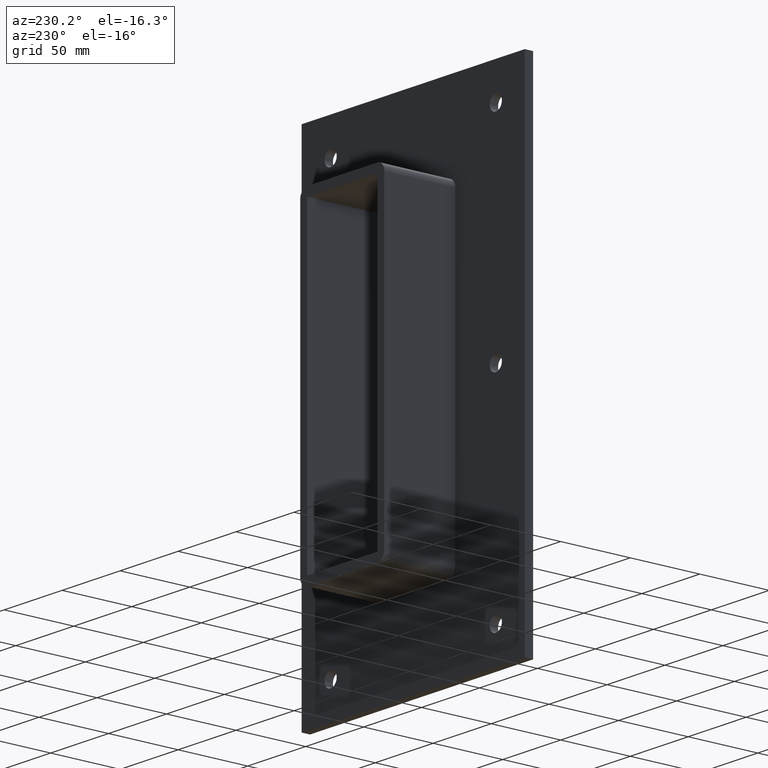
[diagram: clean part render]
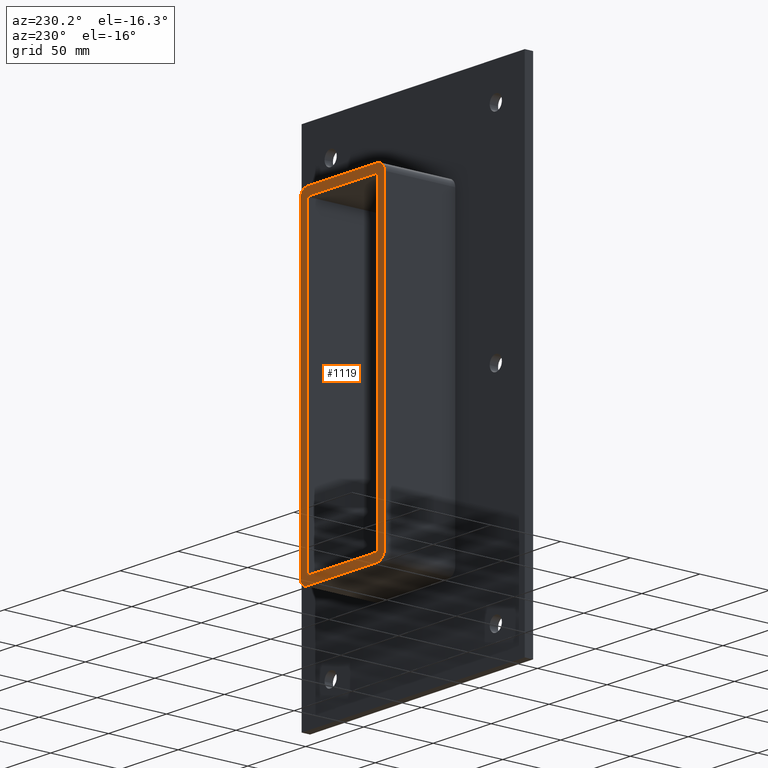
[diagram: same view with one face highlighted and labeled with its STEP entity id]
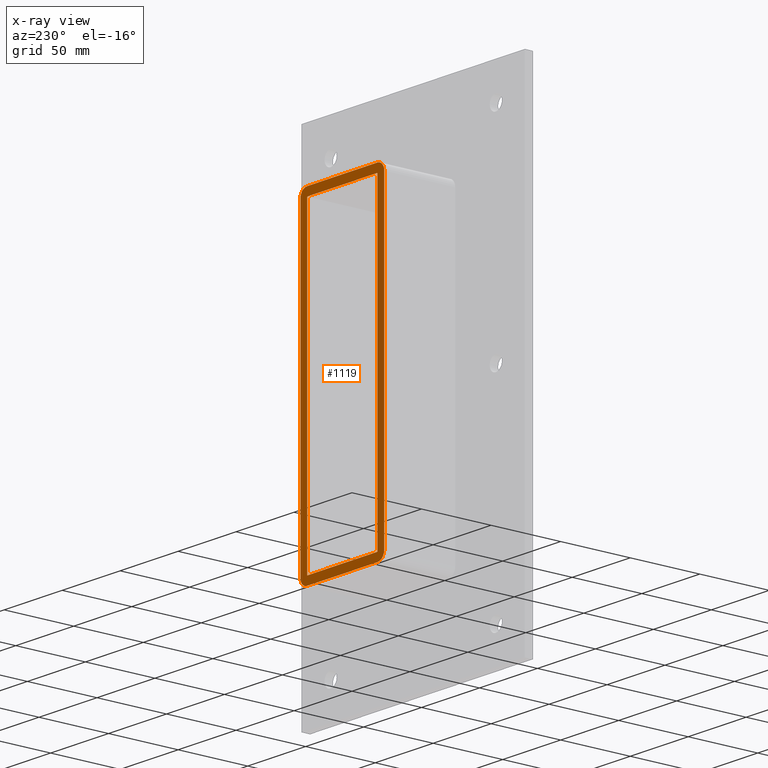
[diagram: x-ray of the same camera — body ghosted, the highlighted face saturated]
A machine part, auxiliary view. The second image highlights one B-rep face of the part: STEP entity #1119.
The next image is the same camera in x-ray: the body ghosted, the highlighted face saturated — about 0% of this face is hidden behind the body in this view.
In plain terms, the highlighted planar face has unit normal (0, 1, 0).
Its self-contained STEP definition (entity closure, byte-faithful):
#567=CARTESIAN_POINT('',(-30.249999999999986,57.0,-108.99999999999999));
#568=VERTEX_POINT('',#567);
#575=CARTESIAN_POINT('',(-30.249999999999986,57.0,109.00000000000003));
#576=VERTEX_POINT('',#575);
#577=CARTESIAN_POINT('',(-30.249999999999986,57.0,109.0));
#578=DIRECTION('',(0.0,0.0,-1.0));
#579=VECTOR('',#578,218.0);
#580=LINE('',#577,#579);
#581=EDGE_CURVE('',#576,#568,#580,.T.);
#638=CARTESIAN_POINT('',(30.250000000000004,57.0,-115.0));
#639=VERTEX_POINT('',#638);
#646=CARTESIAN_POINT('',(36.25,57.0,-108.99999999999999));
#647=VERTEX_POINT('',#646);
#648=CARTESIAN_POINT('',(30.250000000000004,57.0,-108.99999999999999));
#649=DIRECTION('',(0.0,-1.0,0.0));
#650=DIRECTION('',(0.707106781186546,0.0,-0.707106781186549));
#651=AXIS2_PLACEMENT_3D('',#648,#649,#650);
#652=CIRCLE('',#651,6.000000000000001);
#653=EDGE_CURVE('',#639,#647,#652,.T.);
#694=CARTESIAN_POINT('',(-30.250000000000004,57.0,-115.0));
#695=VERTEX_POINT('',#694);
#702=CARTESIAN_POINT('',(30.250000000000004,57.0,-115.0));
#703=DIRECTION('',(-1.0,0.0,0.0));
#704=VECTOR('',#703,60.5);
#705=LINE('',#702,#704);
#706=EDGE_CURVE('',#639,#695,#705,.T.);
#767=CARTESIAN_POINT('',(-36.25,57.0,-108.99999999999999));
#768=VERTEX_POINT('',#767);
#775=CARTESIAN_POINT('',(-30.250000000000004,57.0,-108.99999999999999));
#776=DIRECTION('',(0.0,-1.0,0.0));
#777=DIRECTION('',(-0.707106781186546,0.0,-0.707106781186549));
#778=AXIS2_PLACEMENT_3D('',#775,#776,#777);
#779=CIRCLE('',#778,6.000000000000001);
#780=EDGE_CURVE('',#768,#695,#779,.T.);
#841=CARTESIAN_POINT('',(-36.25,57.0,108.99999999999999));
#842=VERTEX_POINT('',#841);
#849=CARTESIAN_POINT('',(-36.25,57.0,-108.99999999999999));
#850=DIRECTION('',(0.0,0.0,1.0));
#851=VECTOR('',#850,218.0);
#852=LINE('',#849,#851);
#853=EDGE_CURVE('',#768,#842,#852,.T.);
#948=CARTESIAN_POINT('',(-30.250000000000004,57.0,115.0));
#949=VERTEX_POINT('',#948);
#956=CARTESIAN_POINT('',(-30.250000000000004,57.0,108.99999999999999));
#957=DIRECTION('',(0.0,-1.0,0.0));
#958=DIRECTION('',(-0.707106781186546,0.0,0.707106781186549));
#959=AXIS2_PLACEMENT_3D('',#956,#957,#958);
#960=CIRCLE('',#959,6.000000000000001);
#961=EDGE_CURVE('',#949,#842,#960,.T.);
#973=CARTESIAN_POINT('',(30.250000000000004,57.0,115.0));
#974=VERTEX_POINT('',#973);
#981=CARTESIAN_POINT('',(-30.250000000000004,57.0,115.0));
#982=DIRECTION('',(1.0,0.0,0.0));
#983=VECTOR('',#982,60.5);
#984=LINE('',#981,#983);
#985=EDGE_CURVE('',#949,#974,#984,.T.);
#997=CARTESIAN_POINT('',(36.25,57.0,109.0));
#998=VERTEX_POINT('',#997);
#1005=CARTESIAN_POINT('',(30.250000000000004,57.0,109.0));
#1006=DIRECTION('',(0.0,-1.0,0.0));
#1007=DIRECTION('',(0.707106781186548,0.0,0.707106781186547));
#1008=AXIS2_PLACEMENT_3D('',#1005,#1006,#1007);
#1009=CIRCLE('',#1008,6.0);
#1010=EDGE_CURVE('',#998,#974,#1009,.T.);
#1023=CARTESIAN_POINT('',(36.25,57.0,109.0));
#1024=DIRECTION('',(0.0,0.0,-1.0));
#1025=VECTOR('',#1024,218.0);
#1026=LINE('',#1023,#1025);
#1027=EDGE_CURVE('',#998,#647,#1026,.T.);
#1038=CARTESIAN_POINT('',(30.249999999999986,57.0,-108.99999999999999));
#1039=VERTEX_POINT('',#1038);
#1047=CARTESIAN_POINT('',(30.249999999999986,57.0,109.00000000000003));
#1048=VERTEX_POINT('',#1047);
#1055=CARTESIAN_POINT('',(30.249999999999986,57.0,-108.99999999999999));
#1056=DIRECTION('',(0.0,0.0,1.0));
#1057=VECTOR('',#1056,218.0);
#1058=LINE('',#1055,#1057);
#1059=EDGE_CURVE('',#1039,#1048,#1058,.T.);
#1070=CARTESIAN_POINT('',(30.249999999999986,57.0,109.00000000000006));
#1071=DIRECTION('',(-1.0,0.0,0.0));
#1072=VECTOR('',#1071,60.499999999999972);
#1073=LINE('',#1070,#1072);
#1074=EDGE_CURVE('',#1048,#576,#1073,.T.);
#1089=CARTESIAN_POINT('',(-30.249999999999986,57.0,-108.99999999999999));
#1090=DIRECTION('',(1.0,0.0,0.0));
#1091=VECTOR('',#1090,60.499999999999972);
#1092=LINE('',#1089,#1091);
#1093=EDGE_CURVE('',#568,#1039,#1092,.T.);
#1098=CARTESIAN_POINT('',(0.0,57.0,0.0));
#1099=DIRECTION('',(0.0,1.0,0.0));
#1100=DIRECTION('',(0.0,0.0,1.0));
#1101=AXIS2_PLACEMENT_3D('',#1098,#1099,#1100);
#1102=PLANE('',#1101);
#1103=ORIENTED_EDGE('',*,*,#780,.F.);
#1104=ORIENTED_EDGE('',*,*,#853,.T.);
#1105=ORIENTED_EDGE('',*,*,#961,.F.);
#1106=ORIENTED_EDGE('',*,*,#985,.T.);
#1107=ORIENTED_EDGE('',*,*,#1010,.F.);
#1108=ORIENTED_EDGE('',*,*,#1027,.T.);
#1109=ORIENTED_EDGE('',*,*,#653,.F.);
#1110=ORIENTED_EDGE('',*,*,#706,.T.);
#1111=EDGE_LOOP('',(#1103,#1104,#1105,#1106,#1107,#1108,#1109,#1110));
#1112=FACE_OUTER_BOUND('',#1111,.T.);
#1113=ORIENTED_EDGE('',*,*,#1059,.T.);
#1114=ORIENTED_EDGE('',*,*,#1074,.T.);
#1115=ORIENTED_EDGE('',*,*,#581,.T.);
#1116=ORIENTED_EDGE('',*,*,#1093,.T.);
#1117=EDGE_LOOP('',(#1113,#1114,#1115,#1116));
#1118=FACE_BOUND('',#1117,.T.);
#1119=ADVANCED_FACE('',(#1112,#1118),#1102,.T.);